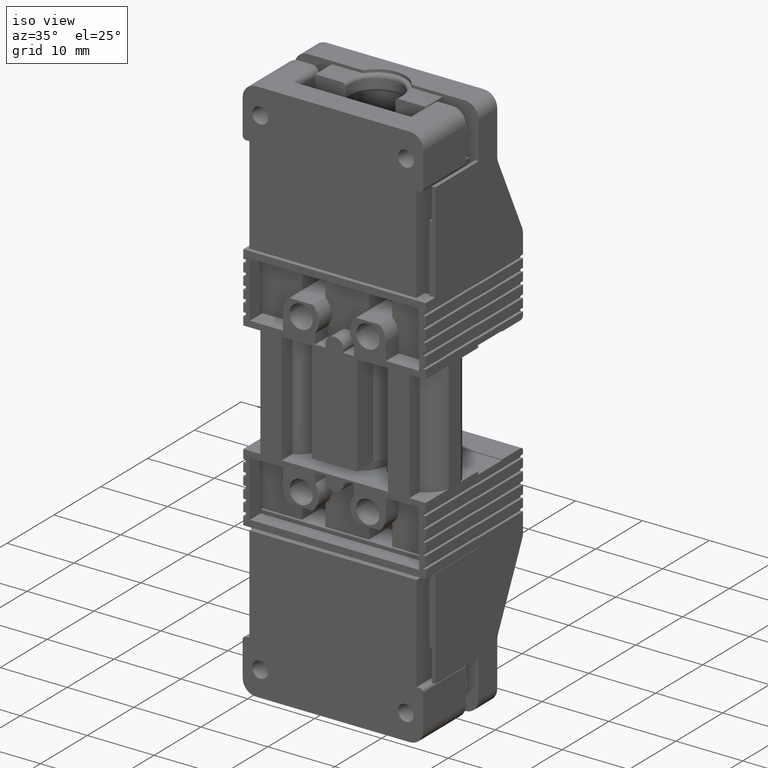
[diagram: clean part render]
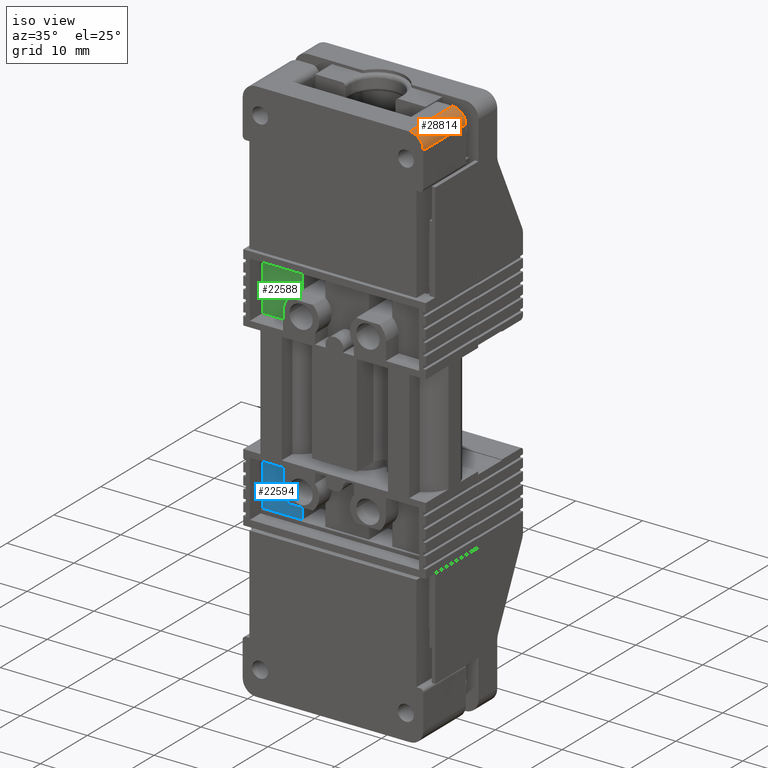
[diagram: same view with three faces highlighted in distinct colors, each labeled with its STEP entity id]
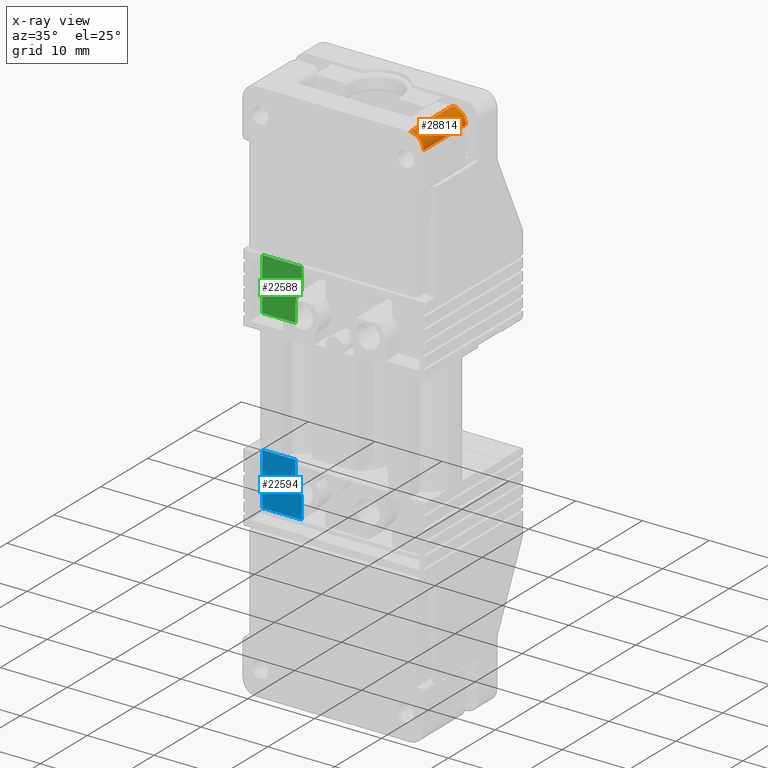
[diagram: x-ray of the same camera — body ghosted, the three highlighted faces saturated]
A machine part, iso view with three faces highlighted in distinct colors.
The next image is the same camera in x-ray (body ghosted, the three faces saturated) — at least one of them is partly hidden behind the body in this view.
Their STEP definitions:

[orange] entity #28814 — the highlighted cylindrical surface (edge-blend (fillet) strip) has radius 2 mm, axis along (0, -1, 0).
#2856 = DIRECTION ( 'NONE',  ( 0.0000000000000000000, 0.0000000000000000000, -1.000000000000000000 ) ) ;
#4504 = EDGE_CURVE ( 'NONE', #26801, #26793, #8807, .T. ) ;
#4601 = EDGE_CURVE ( 'NONE', #26804, #26822, #8968, .T. ) ;
#4723 = EDGE_CURVE ( 'NONE', #26804, #26801, #24807, .T. ) ;
#4770 = EDGE_CURVE ( 'NONE', #26793, #26822, #25171, .T. ) ;
#5980 = EDGE_LOOP ( 'NONE', ( #18769, #18766, #18797, #18785 ) ) ;
#8807 = CIRCLE ( 'NONE', #8854, 2.000000000000001800 ) ;
#8854 = AXIS2_PLACEMENT_3D ( 'NONE', #19669, #19924, #2856 ) ;
#8940 = AXIS2_PLACEMENT_3D ( 'NONE', #23439, #23464, #23442 ) ;
#8968 = CIRCLE ( 'NONE', #8940, 2.000000000000001800 ) ;
#9099 = VECTOR ( 'NONE', #24820, 1000.000000000000000 ) ;
#9144 = VECTOR ( 'NONE', #25218, 1000.000000000000000 ) ;
#10953 = CARTESIAN_POINT ( 'NONE',  ( 25.14999999999954000, -2.199999999999994400, 50.19999999999995300 ) ) ;
#10954 = CARTESIAN_POINT ( 'NONE',  ( 27.14999999999967500, -2.199999999999994400, 48.20000000000001700 ) ) ;
#10962 = CARTESIAN_POINT ( 'NONE',  ( 25.14999999999954000, -11.29999999999999400, 50.19999999999995300 ) ) ;
#10981 = CARTESIAN_POINT ( 'NONE',  ( 27.14999999999967200, -11.29999999999999400, 48.20000000000000300 ) ) ;
#11441 = CARTESIAN_POINT ( 'NONE',  ( 25.14999999999966800, -8.699999999999999300, 48.19999999999992500 ) ) ;
#11442 = CYLINDRICAL_SURFACE ( 'NONE', #13956, 2.000000000000001800 ) ;
#11445 = FACE_OUTER_BOUND ( 'NONE', #5980, .T. ) ;
#11451 = DIRECTION ( 'NONE',  ( 0.0000000000000000000, 0.0000000000000000000, -1.000000000000000000 ) ) ;
#11454 = DIRECTION ( 'NONE',  ( 0.0000000000000000000, -1.000000000000000000, 0.0000000000000000000 ) ) ;
#13956 = AXIS2_PLACEMENT_3D ( 'NONE', #11441, #11454, #11451 ) ;
#18766 = ORIENTED_EDGE ( 'NONE', *, *, #4770, .T. ) ;
#18769 = ORIENTED_EDGE ( 'NONE', *, *, #4504, .T. ) ;
#18785 = ORIENTED_EDGE ( 'NONE', *, *, #4723, .T. ) ;
#18797 = ORIENTED_EDGE ( 'NONE', *, *, #4601, .F. ) ;
#19669 = CARTESIAN_POINT ( 'NONE',  ( 25.14999999999966800, -2.199999999999994400, 48.19999999999992500 ) ) ;
#19924 = DIRECTION ( 'NONE',  ( 0.0000000000000000000, -1.000000000000000000, 0.0000000000000000000 ) ) ;
#23439 = CARTESIAN_POINT ( 'NONE',  ( 25.14999999999966800, -11.29999999999999400, 48.19999999999992500 ) ) ;
#23442 = DIRECTION ( 'NONE',  ( 0.0000000000000000000, 0.0000000000000000000, -1.000000000000000000 ) ) ;
#23464 = DIRECTION ( 'NONE',  ( 0.0000000000000000000, -1.000000000000000000, 0.0000000000000000000 ) ) ;
#24770 = CARTESIAN_POINT ( 'NONE',  ( 27.14999999999967200, -8.699999999999999300, 48.20000000000000300 ) ) ;
#24807 = LINE ( 'NONE', #24770, #9099 ) ;
#24820 = DIRECTION ( 'NONE',  ( -0.0000000000000000000, 1.000000000000000000, -0.0000000000000000000 ) ) ;
#25171 = LINE ( 'NONE', #25205, #9144 ) ;
#25205 = CARTESIAN_POINT ( 'NONE',  ( 25.14999999999954000, -8.699999999999999300, 50.19999999999995300 ) ) ;
#25218 = DIRECTION ( 'NONE',  ( -0.0000000000000000000, -1.000000000000000000, -0.0000000000000000000 ) ) ;
#26793 = VERTEX_POINT ( 'NONE', #10953 ) ;
#26801 = VERTEX_POINT ( 'NONE', #10954 ) ;
#26804 = VERTEX_POINT ( 'NONE', #10981 ) ;
#26822 = VERTEX_POINT ( 'NONE', #10962 ) ;
#28814 = ADVANCED_FACE ( 'NONE', ( #11445 ), #11442, .T. ) ;

[blue] entity #22594 — the highlighted planar face has unit normal (0, -1, -0).
#2512 = LINE ( 'NONE', #2518, #24405 ) ;
#2518 = CARTESIAN_POINT ( 'NONE',  ( 1.163853846148256800, -8.499999999999936100, -8.154633812477808200 ) ) ;
#2527 = DIRECTION ( 'NONE',  ( 1.000000000000000000, 2.161266648545581400E-015, 0.0000000000000000000 ) ) ;
#3481 = EDGE_CURVE ( 'NONE', #21705, #21652, #2512, .T. ) ;
#4973 = EDGE_CURVE ( 'NONE', #26869, #26866, #29922, .T. ) ;
#5000 = EDGE_CURVE ( 'NONE', #26866, #21705, #29974, .T. ) ;
#5002 = EDGE_CURVE ( 'NONE', #21652, #26876, #29951, .T. ) ;
#5071 = EDGE_CURVE ( 'NONE', #26890, #26876, #8245, .T. ) ;
#5081 = EDGE_CURVE ( 'NONE', #26890, #26869, #30250, .T. ) ;
#5744 = EDGE_LOOP ( 'NONE', ( #23606, #23568, #23591, #23597, #23537, #23625 ) ) ;
#6714 = CARTESIAN_POINT ( 'NONE',  ( 7.054853846148449600, -8.499999999999923600, -8.154633812477849000 ) ) ;
#6774 = CARTESIAN_POINT ( 'NONE',  ( 1.163853846148824100, -8.499999999999937800, -8.154633812477808200 ) ) ;
#8176 = VECTOR ( 'NONE', #29929, 1000.000000000000000 ) ;
#8185 = VECTOR ( 'NONE', #29981, 1000.000000000000000 ) ;
#8198 = VECTOR ( 'NONE', #29941, 1000.000000000000000 ) ;
#8245 = CIRCLE ( 'NONE', #8259, 2.700000000000002800 ) ;
#8259 = AXIS2_PLACEMENT_3D ( 'NONE', #30197, #30198, #30181 ) ;
#8350 = VECTOR ( 'NONE', #30255, 1000.000000000000000 ) ;
#11021 = CARTESIAN_POINT ( 'NONE',  ( 6.104853846150081900, -8.499999999999928900, -2.900000000001701700 ) ) ;
#11034 = CARTESIAN_POINT ( 'NONE',  ( 1.163853846150868500, -8.499999999999937800, -0.3000000000001659700 ) ) ;
#11048 = CARTESIAN_POINT ( 'NONE',  ( 6.104853846150896300, -8.499999999999930700, -0.3000000000016565500 ) ) ;
#11076 = CARTESIAN_POINT ( 'NONE',  ( 7.054853846148696500, -8.499999999999923600, -4.956088519496969300 ) ) ;
#14651 = AXIS2_PLACEMENT_3D ( 'NONE', #21073, #21039, #21046 ) ;
#21039 = DIRECTION ( 'NONE',  ( 2.161266648545581400E-015, -1.000000000000000000, -1.440976967378756200E-015 ) ) ;
#21041 = PLANE ( 'NONE',  #14651 ) ;
#21043 = FACE_OUTER_BOUND ( 'NONE', #5744, .T. ) ;
#21046 = DIRECTION ( 'NONE',  ( 1.000000000000000000, 2.161266648545581400E-015, 0.0000000000000000000 ) ) ;
#21073 = CARTESIAN_POINT ( 'NONE',  ( 1.163853846148256800, -8.499999999999936100, -8.700000000000262200 ) ) ;
#21652 = VERTEX_POINT ( 'NONE', #6714 ) ;
#21705 = VERTEX_POINT ( 'NONE', #6774 ) ;
#22594 = ADVANCED_FACE ( 'NONE', ( #21043 ), #21041, .T. ) ;
#23537 = ORIENTED_EDGE ( 'NONE', *, *, #5000, .T. ) ;
#23568 = ORIENTED_EDGE ( 'NONE', *, *, #5071, .F. ) ;
#23591 = ORIENTED_EDGE ( 'NONE', *, *, #5081, .T. ) ;
#23597 = ORIENTED_EDGE ( 'NONE', *, *, #4973, .T. ) ;
#23606 = ORIENTED_EDGE ( 'NONE', *, *, #5002, .T. ) ;
#23625 = ORIENTED_EDGE ( 'NONE', *, *, #3481, .T. ) ;
#24405 = VECTOR ( 'NONE', #2527, 1000.000000000000000 ) ;
#26866 = VERTEX_POINT ( 'NONE', #11034 ) ;
#26869 = VERTEX_POINT ( 'NONE', #11048 ) ;
#26876 = VERTEX_POINT ( 'NONE', #11076 ) ;
#26890 = VERTEX_POINT ( 'NONE', #11021 ) ;
#29905 = CARTESIAN_POINT ( 'NONE',  ( 26.44707816742145200, -8.499999999999932500, -0.3000000000080238500 ) ) ;
#29922 = LINE ( 'NONE', #29905, #8176 ) ;
#29929 = DIRECTION ( 'NONE',  ( -1.000000000000000000, -0.0000000000000000000, 3.109701669496363800E-013 ) ) ;
#29941 = DIRECTION ( 'NONE',  ( 3.114335460918059800E-030, -1.440976967378756200E-015, 1.000000000000000000 ) ) ;
#29951 = LINE ( 'NONE', #29962, #8198 ) ;
#29962 = CARTESIAN_POINT ( 'NONE',  ( 7.054853846148449600, -8.499999999999923600, -8.700000000000262200 ) ) ;
#29974 = LINE ( 'NONE', #29976, #8185 ) ;
#29976 = CARTESIAN_POINT ( 'NONE',  ( 1.163853846148256800, -8.499999999999939600, -8.700000000000262200 ) ) ;
#29981 = DIRECTION ( 'NONE',  ( -3.109701669496363800E-013, -0.0000000000000000000, -1.000000000000000000 ) ) ;
#30181 = DIRECTION ( 'NONE',  ( -1.000000000000000000, -1.927470528863117000E-015, 0.0000000000000000000 ) ) ;
#30197 = CARTESIAN_POINT ( 'NONE',  ( 8.804853846150086500, -8.499999999999923600, -2.900000000002539700 ) ) ;
#30198 = DIRECTION ( 'NONE',  ( 2.161266648545581000E-015, -1.000000000000000000, -1.440976967378756200E-015 ) ) ;
#30247 = CARTESIAN_POINT ( 'NONE',  ( 6.104853846150890100, -8.499999999999928900, -0.3000000000015845500 ) ) ;
#30250 = LINE ( 'NONE', #30247, #8350 ) ;
#30255 = DIRECTION ( 'NONE',  ( 3.109701669496363800E-013, -0.0000000000000000000, 1.000000000000000000 ) ) ;

[green] entity #22588 — the highlighted planar face has unit normal (0, -1, 0).
#2663 = LINE ( 'NONE', #2749, #24563 ) ;
#2738 = DIRECTION ( 'NONE',  ( -1.000000000000000000, -2.161266648545581400E-015, -0.0000000000000000000 ) ) ;
#2749 = CARTESIAN_POINT ( 'NONE',  ( 1.163853846148256800, -8.500000000000007100, 26.05463381247817600 ) ) ;
#3546 = EDGE_CURVE ( 'NONE', #21669, #21703, #2663, .T. ) ;
#5045 = EDGE_CURVE ( 'NONE', #21669, #26885, #30100, .T. ) ;
#5053 = EDGE_CURVE ( 'NONE', #21703, #26884, #30160, .T. ) ;
#5072 = EDGE_CURVE ( 'NONE', #26884, #26891, #30182, .T. ) ;
#5083 = EDGE_CURVE ( 'NONE', #26885, #26887, #8325, .T. ) ;
#5131 = EDGE_CURVE ( 'NONE', #26891, #26887, #10667, .T. ) ;
#5699 = EDGE_LOOP ( 'NONE', ( #23812, #23825, #23769, #23789, #23797, #23729 ) ) ;
#6707 = CARTESIAN_POINT ( 'NONE',  ( 7.054853846148780000, -8.499999999999994700, 26.05463381247830100 ) ) ;
#6746 = CARTESIAN_POINT ( 'NONE',  ( 1.163853846148388900, -8.500000000000007100, 26.05463381247794200 ) ) ;
#8237 = VECTOR ( 'NONE', #30099, 1000.000000000000000 ) ;
#8243 = VECTOR ( 'NONE', #30140, 1000.000000000000000 ) ;
#8253 = VECTOR ( 'NONE', #30191, 1000.000000000000000 ) ;
#8318 = AXIS2_PLACEMENT_3D ( 'NONE', #30224, #30219, #30235 ) ;
#8325 = CIRCLE ( 'NONE', #8318, 2.700000000000002800 ) ;
#8401 = VECTOR ( 'NONE', #10620, 1000.000000000000000 ) ;
#10620 = DIRECTION ( 'NONE',  ( -3.109701669496363800E-013, -0.0000000000000000000, 1.000000000000000000 ) ) ;
#10625 = CARTESIAN_POINT ( 'NONE',  ( 6.104853846150890100, -8.500000000000014200, 18.20000000000160500 ) ) ;
#10667 = LINE ( 'NONE', #10625, #8401 ) ;
#11014 = CARTESIAN_POINT ( 'NONE',  ( 1.163853846150874900, -8.500000000000012400, 18.20000000000018000 ) ) ;
#11016 = CARTESIAN_POINT ( 'NONE',  ( 7.054853846149190300, -8.499999999999991100, 22.85608851949740800 ) ) ;
#11038 = CARTESIAN_POINT ( 'NONE',  ( 6.104853846150889200, -8.500000000000014200, 18.20000000000172200 ) ) ;
#11070 = CARTESIAN_POINT ( 'NONE',  ( 6.104853846150082800, -8.500000000000003600, 20.80000000000213200 ) ) ;
#14660 = AXIS2_PLACEMENT_3D ( 'NONE', #20999, #21000, #21017 ) ;
#20999 = CARTESIAN_POINT ( 'NONE',  ( 1.163853846148256800, -8.500000000000007100, 26.60000000000027500 ) ) ;
#21000 = DIRECTION ( 'NONE',  ( 2.161266648545581400E-015, -1.000000000000000000, 1.440976967378756200E-015 ) ) ;
#21007 = FACE_OUTER_BOUND ( 'NONE', #5699, .T. ) ;
#21016 = PLANE ( 'NONE',  #14660 ) ;
#21017 = DIRECTION ( 'NONE',  ( 1.000000000000000000, 2.161266648545581400E-015, 0.0000000000000000000 ) ) ;
#21669 = VERTEX_POINT ( 'NONE', #6707 ) ;
#21703 = VERTEX_POINT ( 'NONE', #6746 ) ;
#22588 = ADVANCED_FACE ( 'NONE', ( #21007 ), #21016, .T. ) ;
#23729 = ORIENTED_EDGE ( 'NONE', *, *, #5053, .T. ) ;
#23769 = ORIENTED_EDGE ( 'NONE', *, *, #5083, .F. ) ;
#23789 = ORIENTED_EDGE ( 'NONE', *, *, #5045, .F. ) ;
#23797 = ORIENTED_EDGE ( 'NONE', *, *, #3546, .T. ) ;
#23812 = ORIENTED_EDGE ( 'NONE', *, *, #5072, .T. ) ;
#23825 = ORIENTED_EDGE ( 'NONE', *, *, #5131, .T. ) ;
#24563 = VECTOR ( 'NONE', #2738, 1000.000000000000000 ) ;
#26884 = VERTEX_POINT ( 'NONE', #11014 ) ;
#26885 = VERTEX_POINT ( 'NONE', #11016 ) ;
#26887 = VERTEX_POINT ( 'NONE', #11070 ) ;
#26891 = VERTEX_POINT ( 'NONE', #11038 ) ;
#30099 = DIRECTION ( 'NONE',  ( 3.109701669496363800E-013, 0.0000000000000000000, -1.000000000000000000 ) ) ;
#30100 = LINE ( 'NONE', #30106, #8237 ) ;
#30106 = CARTESIAN_POINT ( 'NONE',  ( 7.054853846148281700, -8.499999999999994700, 26.60000000000199800 ) ) ;
#30128 = CARTESIAN_POINT ( 'NONE',  ( 1.163853846148256800, -8.500000000000007100, 26.60000000000027500 ) ) ;
#30140 = DIRECTION ( 'NONE',  ( 3.109701669496363800E-013, -0.0000000000000000000, -1.000000000000000000 ) ) ;
#30160 = LINE ( 'NONE', #30128, #8243 ) ;
#30169 = CARTESIAN_POINT ( 'NONE',  ( 26.44707816742145200, -8.500000000000012400, 18.20000000000804300 ) ) ;
#30182 = LINE ( 'NONE', #30169, #8253 ) ;
#30191 = DIRECTION ( 'NONE',  ( 1.000000000000000000, -0.0000000000000000000, 3.109701669496363800E-013 ) ) ;
#30219 = DIRECTION ( 'NONE',  ( 2.161266648545581000E-015, -1.000000000000000000, 1.440976967378756200E-015 ) ) ;
#30224 = CARTESIAN_POINT ( 'NONE',  ( 8.804853846150086500, -8.499999999999989300, 20.80000000000255200 ) ) ;
#30235 = DIRECTION ( 'NONE',  ( -1.000000000000000000, -1.927470528863117000E-015, 7.709882115452467900E-015 ) ) ;